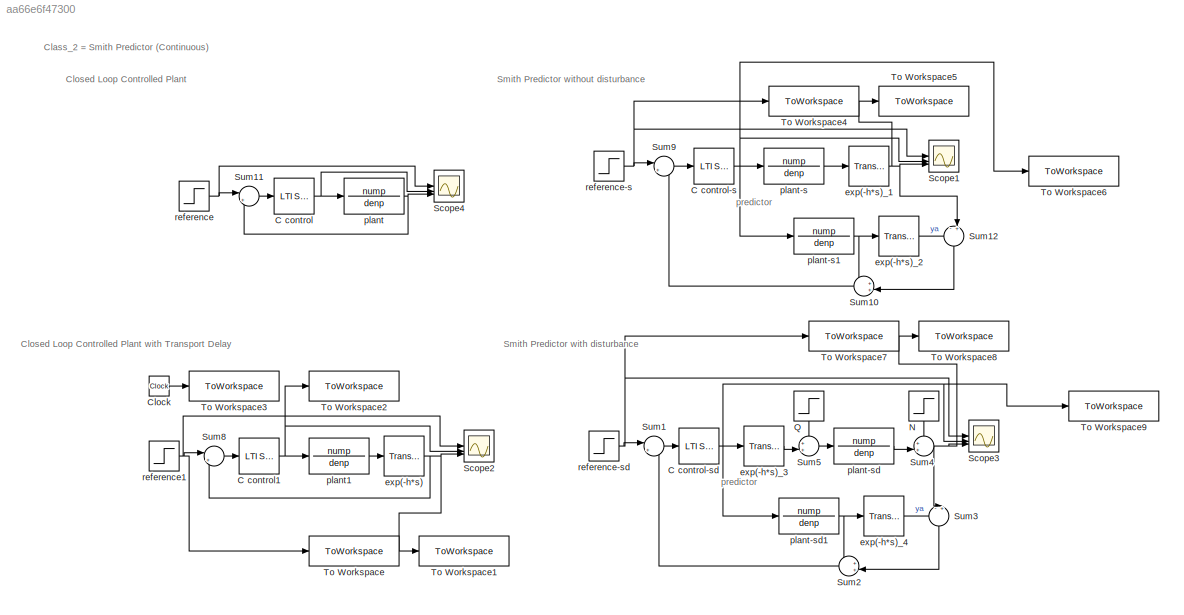
MODEL slx_aa66e6f47300
KIND model
CONFIG AbsTol = auto
CONFIG EnableMultiTasking = off
CONFIG FixedStep = auto
CONFIG MaxStep = auto
CONFIG MinStep = auto
CONFIG RelTol = 1e-3
CONFIG SampleTimeConstraint = Unconstrained
CONFIG SolverName = VariableStepAuto
CONFIG StartTime = 0.0
CONFIG StopTime = Tsim
BLOCK [Reference] C control  REF=cstblocks/LTI System
  SourceBlock = cstblocks/LTI System
  SourceType = LTI Block
BLOCK [Reference] C control-s  REF=cstblocks/LTI System
  SourceBlock = cstblocks/LTI System
  SourceType = LTI Block
BLOCK [Reference] C control-sd  REF=cstblocks/LTI System
  SourceBlock = cstblocks/LTI System
  SourceType = LTI Block
BLOCK [Reference] C control1  REF=cstblocks/LTI System
  SourceBlock = cstblocks/LTI System
  SourceType = LTI Block
BLOCK [Clock] Clock
BLOCK [Step] N
  After = 0.2
  NameLocation = left
  SampleTime = 0
  Time = 20
BLOCK [Step] Q
  After = 0.2
  NameLocation = left
  SampleTime = 0
  Time = 10
BLOCK [Scope] Scope1
  Floating = off
  NumInputPorts = 3
  ScopeSpecificationString = Simulink.scopes.TimeScopeBlockCfg('CurrentConfiguration', extmgr.ConfigurationSet(extmgr.Configuration('Core','General UI',true,'FigureColor',[1 1 1]),extmgr.Configuration('Core','Source UI',true),extmgr.Configuration('Sources','WiredSimulink',true,'DataLoggingVariableName','ScopeData2'),extmgr.Configuration('Visuals','Time Domain',true,'SerializedDisplays',{struct('MinYLimReal','-0.667','MaxYLimR...<+1869ch>
BLOCK [Scope] Scope2
  Floating = off
  NumInputPorts = 3
  ScopeSpecificationString = Simulink.scopes.TimeScopeBlockCfg('CurrentConfiguration', extmgr.ConfigurationSet(extmgr.Configuration('Core','General UI',true,'FigureColor',[1 1 1]),extmgr.Configuration('Core','Source UI',true),extmgr.Configuration('Sources','WiredSimulink',true,'DataLoggingVariableName','ScopeData1'),extmgr.Configuration('Visuals','Time Domain',true,'SerializedDisplays',{struct('MinYLimReal','-147285.02662','M...<+1913ch>
BLOCK [Scope] Scope3
  Floating = off
  NumInputPorts = 3
  ScopeSpecificationString = Simulink.scopes.TimeScopeBlockCfg('CurrentConfiguration', extmgr.ConfigurationSet(extmgr.Configuration('Core','General UI',true,'FigureColor',[1 1 1]),extmgr.Configuration('Core','Source UI',true),extmgr.Configuration('Sources','WiredSimulink',true,'DataLoggingVariableName','ScopeData3'),extmgr.Configuration('Visuals','Time Domain',true,'SerializedDisplays',{struct('MinYLimReal','-0.667','MaxYLimR...<+1864ch>
BLOCK [Scope] Scope4
  Floating = off
  NumInputPorts = 3
  ScopeSpecificationString = Simulink.scopes.TimeScopeBlockCfg('CurrentConfiguration', extmgr.ConfigurationSet(extmgr.Configuration('Core','General UI',true,'FigureColor',[1 1 1]),extmgr.Configuration('Core','Source UI',true),extmgr.Configuration('Sources','WiredSimulink',true,'DataLoggingVariableName','ScopeData3'),extmgr.Configuration('Visuals','Time Domain',true,'SerializedDisplays',{struct('MinYLimReal','-0.667','MaxYLimR...<+1859ch>
BLOCK [Sum] Sum1
  Inputs = |+-
BLOCK [Sum] Sum10
  Inputs = ++|
  NameLocation = top
BLOCK [Sum] Sum11
  Inputs = |+-
BLOCK [Sum] Sum12
  Inputs = -+|
  NameLocation = left
BLOCK [Sum] Sum2
  Inputs = ++|
  NameLocation = top
BLOCK [Sum] Sum3
  Inputs = -+|
  NameLocation = left
BLOCK [Sum] Sum4
  Inputs = ++|
BLOCK [Sum] Sum5
  Inputs = ++|
BLOCK [Sum] Sum8
  Inputs = |+-
BLOCK [Sum] Sum9
  Inputs = |+-
BLOCK [ToWorkspace] To Workspace
  FixptAsFi = on
  MaxDataPoints = inf
  SampleTime = -1
  VariableName = cl_dp_u
BLOCK [ToWorkspace] To Workspace1
  FixptAsFi = on
  MaxDataPoints = inf
  SampleTime = -1
  VariableName = cl_dp_y
BLOCK [ToWorkspace] To Workspace2
  FixptAsFi = on
  MaxDataPoints = inf
  SampleTime = -1
  VariableName = cl_dp_c
BLOCK [ToWorkspace] To Workspace3
  FixptAsFi = on
  MaxDataPoints = inf
  SampleTime = -1
  VariableName = cl_dp_time
BLOCK [ToWorkspace] To Workspace4
  FixptAsFi = on
  MaxDataPoints = inf
  SampleTime = -1
  VariableName = sp_u
BLOCK [ToWorkspace] To Workspace5
  FixptAsFi = on
  MaxDataPoints = inf
  SampleTime = -1
  VariableName = sp_y
BLOCK [ToWorkspace] To Workspace6
  FixptAsFi = on
  MaxDataPoints = inf
  SampleTime = -1
  VariableName = sp_c
BLOCK [ToWorkspace] To Workspace7
  FixptAsFi = on
  MaxDataPoints = inf
  SampleTime = -1
  VariableName = sp_u1
BLOCK [ToWorkspace] To Workspace8
  FixptAsFi = on
  MaxDataPoints = inf
  SampleTime = -1
  VariableName = sp_y1
BLOCK [ToWorkspace] To Workspace9
  FixptAsFi = on
  MaxDataPoints = inf
  SampleTime = -1
  VariableName = sp_c1
BLOCK [TransportDelay] exp(-h*s)
BLOCK [TransportDelay] exp(-h*s)_1
  DelayTime = h
BLOCK [TransportDelay] exp(-h*s)_2
  DelayTime = h
BLOCK [TransportDelay] exp(-h*s)_3
  DelayTime = h
BLOCK [TransportDelay] exp(-h*s)_4
  DelayTime = h
BLOCK [TransferFcn] plant
  Denominator = denp
  Numerator = nump
BLOCK [TransferFcn] plant-s
  Denominator = denp
  Numerator = nump
BLOCK [TransferFcn] plant-s1
  Denominator = denp
  Numerator = nump
BLOCK [TransferFcn] plant-sd
  Denominator = denp
  Numerator = nump
BLOCK [TransferFcn] plant-sd1
  Denominator = denp
  Numerator = nump
BLOCK [TransferFcn] plant1
  Denominator = denp
  Numerator = nump
BLOCK [Step] reference
  SampleTime = 0
  Time = 0
BLOCK [Step] reference-s
  SampleTime = 0
  Time = 0
BLOCK [Step] reference-sd
  SampleTime = 0
  Time = 0
BLOCK [Step] reference1
  SampleTime = 0
  Time = 0
ANNOTATION (root): Class_2 = Smith Predictor (Continuous)
ANNOTATION (root): Closed Loop Controlled Plant
ANNOTATION (root): Closed Loop Controlled Plant with Transport Delay
ANNOTATION (root): Smith Predictor with disturbance
ANNOTATION (root): Smith Predictor without disturbance
ANNOTATION (root): predictor
NET C control-s:1 -> Scope1:2, To Workspace6:1, plant-s1:1, plant-s:1
NET C control-sd:1 -> Scope3:2, To Workspace9:1, exp(-h*s)_3:1, plant-sd1:1
NET C control1:1 -> Scope2:2, To Workspace2:1, plant1:1
NET C control:1 -> Scope4:2, plant:1
LINE Clock:1 -> To Workspace3:1
LINE N:1 -> Sum4:1
LINE Q:1 -> Sum5:1
LINE Sum10:1 -> Sum9:2
LINE Sum11:1 -> C control:1
LINE Sum12:1 -> Sum10:2
LINE Sum1:1 -> C control-sd:1
LINE Sum2:1 -> Sum1:2
LINE Sum3:1 -> Sum2:2
NET Sum4:1 -> Scope3:3, Sum3:2, To Workspace8:1
LINE Sum5:1 -> plant-sd:1
LINE Sum8:1 -> C control1:1
LINE Sum9:1 -> C control-s:1
NET exp(-h*s):1 -> Scope2:3, Sum8:2, To Workspace1:1
NET exp(-h*s)_1:1 -> Scope1:3, Sum12:2, To Workspace5:1
LINE exp(-h*s)_2:1 -> Sum12:1
LINE exp(-h*s)_3:1 -> Sum5:2
LINE exp(-h*s)_4:1 -> Sum3:1
NET plant-s1:1 -> Sum10:1, exp(-h*s)_2:1
LINE plant-s:1 -> exp(-h*s)_1:1
NET plant-sd1:1 -> Sum2:1, exp(-h*s)_4:1
LINE plant-sd:1 -> Sum4:2
LINE plant1:1 -> exp(-h*s):1
NET plant:1 -> Scope4:3, Sum11:2
NET reference-s:1 -> Scope1:1, Sum9:1, To Workspace4:1
NET reference-sd:1 -> Scope3:1, Sum1:1, To Workspace7:1
NET reference1:1 -> Scope2:1, Sum8:1, To Workspace:1
NET reference:1 -> Scope4:1, Sum11:1
note: NET lines group one-source signal fan-out (src -> all destinations, sorted); 1:1 wires keep LINE
